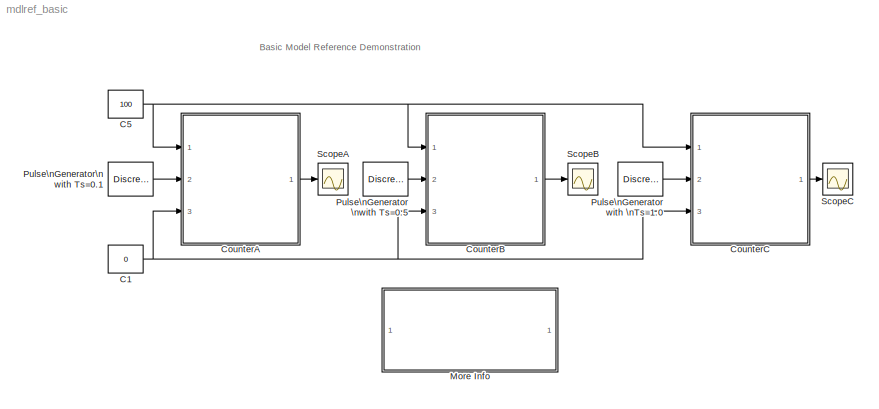
MODEL mdlref_basic
KIND model
BLOCK [Constant] C1
  Value = 0
BLOCK [Constant] C5
  Value = 100
BLOCK [ModelReference] CounterA
  CopyOfModelName = mdlref_counter
  DefaultDataLogging = off
  ModelName = mdlref_counter
  ModelReferenceVersion = 1.64
  Ports = [3, 1]
BLOCK [ModelReference] CounterB
  CopyOfModelName = mdlref_counter
  DefaultDataLogging = off
  ModelName = mdlref_counter
  ModelReferenceVersion = 1.64
  Ports = [3, 1]
BLOCK [ModelReference] CounterC
  CopyOfModelName = mdlref_counter
  DefaultDataLogging = off
  ModelName = mdlref_counter
  ModelReferenceVersion = 1.64
  Ports = [3, 1]
BLOCK [SubSystem] More Info
  MaskDisplay = disp('Double click here \\nfor a step-by-step\\ntutorial on this model')
  MaskIconFrame = on
  MaskIconOpaque = on
  MaskIconRotate = none
  MaskIconUnits = autoscale
  MinAlgLoopOccurrences = off
  OpenFcn = mdlref_basicscript
  Ports = []
  PropExecContextAcrossSSBoundary = on
  RTWSystemCode = Auto
  TreatAsAtomicUnit = off
BLOCK [DiscretePulseGenerator] Pulse\nGenerator \nwith Ts=0.5
  Ports = [0, 1]
  SampleTime = 0.5
BLOCK [DiscretePulseGenerator] Pulse\nGenerator with \nTs=1.0
  Ports = [0, 1]
  SampleTime = 1.0
BLOCK [DiscretePulseGenerator] Pulse\nGenerator\n with Ts=0.1
  Ports = [0, 1]
  SampleTime = 0.1
  VectorParams1D = off
BLOCK [Scope] ScopeA
  DataFormat = StructureWithTime
  LimitDataPoints = off
  NumInputPorts = 1
  Ports = [1]
  SaveName = ScopeDataA
  SaveToWorkspace = on
  TimeRange = 10
  YMax = 100
  YMin = 0
BLOCK [Scope] ScopeB
  DataFormat = StructureWithTime
  LimitDataPoints = off
  NumInputPorts = 1
  Ports = [1]
  SaveName = ScopeDataB
  SaveToWorkspace = on
  TimeRange = 10
  YMax = 25
  YMin = 0
BLOCK [Scope] ScopeC
  DataFormat = StructureWithTime
  LimitDataPoints = off
  NumInputPorts = 1
  Ports = [1]
  SaveName = ScopeDataC
  SaveToWorkspace = on
  TimeRange = 10
  YMax = 15
  YMin = 0
ANNOTATION (root): Basic Model Reference Demonstration
ANNOTATION More Info: Bus Block Demonstration
ANNOTATION More Info: This demonstration shows how signals may be grouped and ungrouped while\nretaining their names. In this demonstration, 5 signals are created and labelled\nappropriately. These signals are then mux'd together to create a bus of signals.\nThis bus of signals is then fed into the Bus Selector block. Inside of the Bus \nSelector block, the Pulse and Chirp signals are chosen to be output from the \nori...<+125ch>
NET C1:1 -> CounterA:3, CounterB:3, CounterC:3
NET C5:1 -> CounterA:1, CounterB:1, CounterC:1
LINE CounterA:1 -> ScopeA:1
LINE CounterB:1 -> ScopeB:1
LINE CounterC:1 -> ScopeC:1
LINE Pulse\nGenerator \nwith Ts=0.5:1 -> CounterB:2
LINE Pulse\nGenerator with \nTs=1.0:1 -> CounterC:2
LINE Pulse\nGenerator\n with Ts=0.1:1 -> CounterA:2
note: NET lines group one-source signal fan-out (src -> all destinations, sorted); 1:1 wires keep LINE
